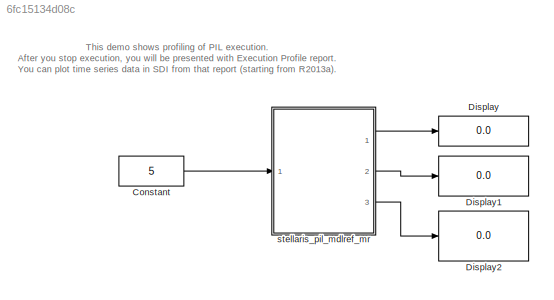
MODEL slx_6fc15134d08c
KIND model
CONFIG AbsTol = auto
CONFIG EnableMultiTasking = off
CONFIG FixedStep = auto
CONFIG MaxStep = auto
CONFIG MinStep = auto
CONFIG RelTol = 1e-3
CONFIG SampleTimeConstraint = Unconstrained
CONFIG Solver = FixedStepDiscrete
CONFIG SolverName = FixedStepDiscrete
CONFIG StartTime = 0.0
CONFIG StopFcn = %executionProfile.report;
CONFIG StopTime = inf
BLOCK [Constant] Constant
  OutDataTypeStr = Inherit: Inherit via back propagation
  SampleTime = 0.01
  Value = 5
BLOCK [Display] Display
  Decimation = 1
  Ports = [1]
BLOCK [Display] Display1
  Decimation = 1
  Ports = [1]
BLOCK [Display] Display2
  Decimation = 1
  Ports = [1]
BLOCK [ModelReference] stellaris_pil_mdlref_mr
  ModelNameDialog = stellaris_pil_mdlref_mr.slx
  ModelReferenceVersion = 1.65
  Ports = [1, 3]
  Variant = off
ANNOTATION (root): This demo shows profiling of PIL execution. After you stop execution, you will be presented with Execution Profile report. You can plot time series data in SDI from that report (starting from R2013a).
LINE Constant:1 -> stellaris_pil_mdlref_mr:1
LINE stellaris_pil_mdlref_mr:1 -> Display:1
LINE stellaris_pil_mdlref_mr:2 -> Display1:1
LINE stellaris_pil_mdlref_mr:3 -> Display2:1
